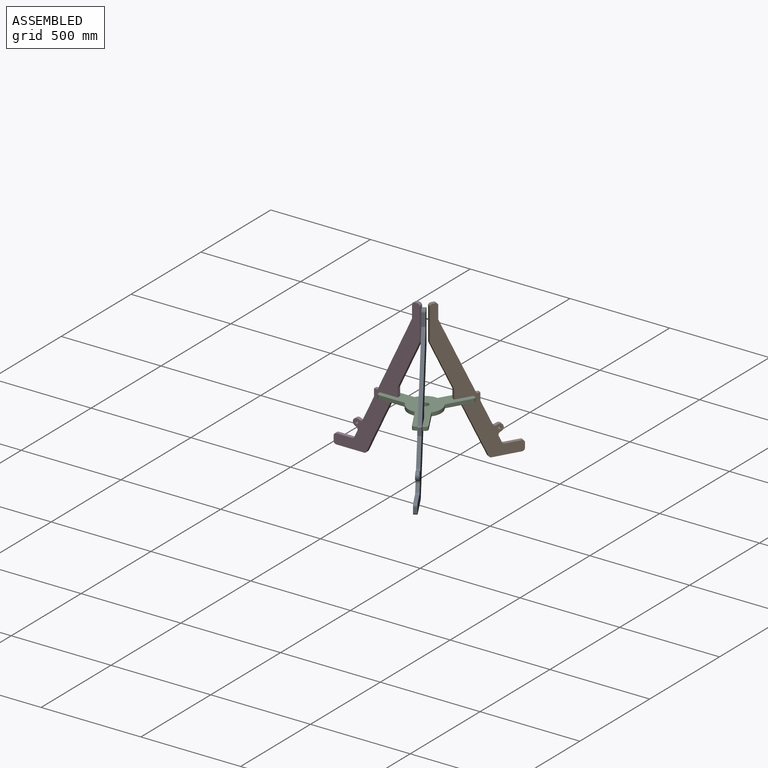
[diagram: assembled view]
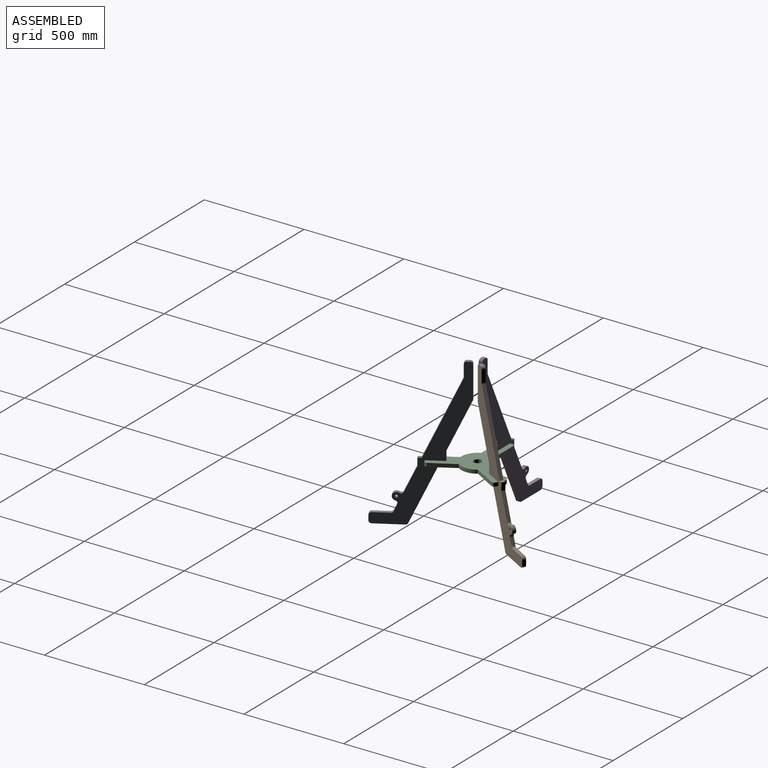
[diagram: assembled view, second angle]
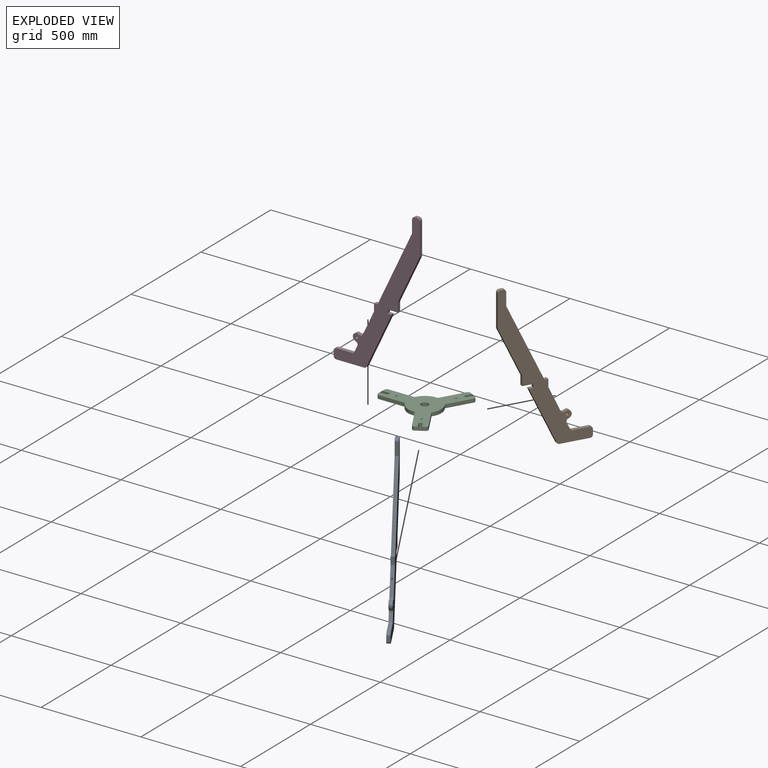
[diagram: exploded view]
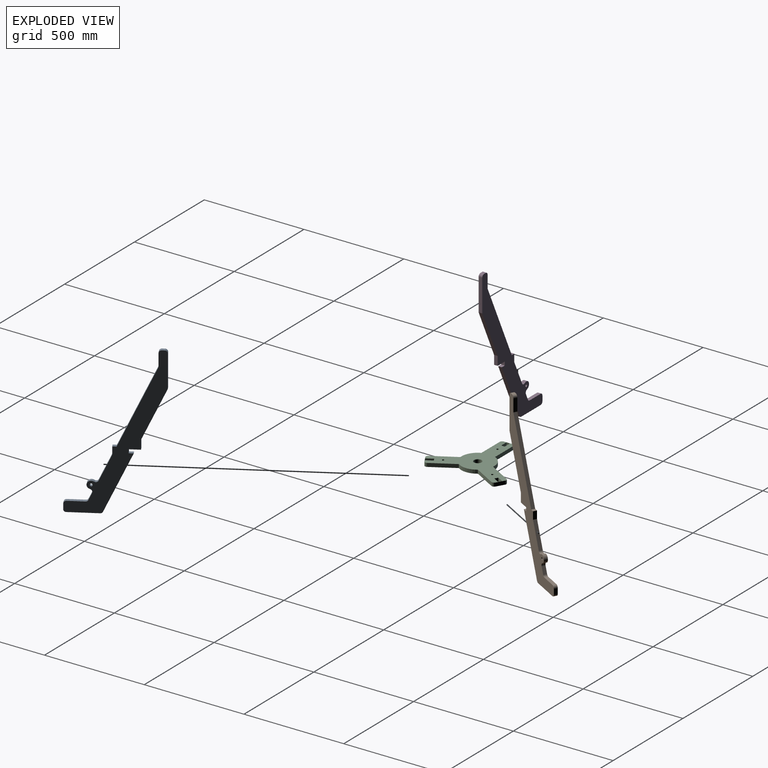
[diagram: exploded view, second angle]
ASSEMBLY  parts=4 mates=3
PART A: 31 faces, bbox 430.9x18x748.4 mm
  f0: plane 32.07x18.03mm, normal (-0.9,0,0.43), area 639.3mm2, adj f21,f22,f27,f28
  f1: plane 79.37x18.03mm, normal (0,0,1), area 1431.4mm2, adj f21,f22,f28,f29
  f2: plane 25.4x18.03mm, normal (-1,0,0), area 458.1mm2, adj f21,f22,f29,f30
  f3: plane 139.67x18.03mm, normal (0,0,-1), area 2518.9mm2, adj f21,f22,f23,f30
  f4: plane 269.44x126.91mm, normal (0.9,0,-0.43), area 5371.2mm2, adj f5,f21,f22,f23
  f5: plane 21.15x18.03mm, normal (0,0,1), area 381.5mm2, adj f4,f6,f21,f22
  f6: plane 18.03x18.03mm, normal (1,0,0), area 325.2mm2, adj f5,f7,f21,f22
  f7: plane 50.8x18.03mm, normal (0,0,-1), area 916.1mm2, adj f6,f8,f21,f22
  f8: plane 44.91x18.03mm, normal (1,0,0), area 809.9mm2, adj f7,f9,f21,f22
  f9: plane 234.6x110.49mm, normal (0.9,0,-0.43), area 4676.5mm2, adj f8,f10,f21,f22
  f10: plane 161.44x18.03mm, normal (1,0,0), area 2911.4mm2, adj f9,f21,f22,f24
  f11: plane 18.03x12.7mm, normal (0,0,1), area 229mm2, adj f21,f22,f24,f25
  f12: plane 63.5x18.03mm, normal (-1,0,0), area 1145.2mm2, adj f13,f21,f22,f25
  f13: plane 367.41x173.05mm, normal (-0.9,0,0.43), area 7324.1mm2, adj f12,f14,f21,f22
  f14: plane 18.03x17.95mm, normal (0,0,1), area 323.6mm2, adj f13,f15,f21,f22
  f15: plane 38.1x18.03mm, normal (-1,0,0), area 687.1mm2, adj f14,f16,f21,f22
  f16: plane 119.09x56.09mm, normal (-0.9,0,0.43), area 2374mm2, adj f15,f21,f22,f26
  f17: plane 18.03x5.74mm, normal (0.43,0,0.9), area 114.5mm2, adj f18,f21,f22,f26
  f18: cylinder r=19.05mm len=36.28mm, axis (0,1,0), area 1079.3mm2, adj f17,f19,f21,f22
  f19: plane 18.03x5.74mm, normal (-0.43,0,-0.9), area 114.5mm2, adj f18,f21,f22,f27
  f20: cylinder r=6.35mm len=18.03mm, axis (0,1,0), area 719.5mm2, adj f21,f22
  f21: plane 748.41x430.91mm, normal (0,-1,0), area 63201.6mm2, adj f0,f1,f2,f3,f4,f5,f6,f7
  f22: plane 748.41x430.91mm, normal (0,1,0), area 63201.6mm2, adj f0,f1,f2,f3,f4,f5,f6,f7
  f23: cylinder r=12.7mm len=18.03mm, axis (0,-1,0), area 258.9mm2, adj f3,f4,f21,f22
  f24: cylinder r=12.7mm len=18.03mm, axis (0,1,0), area 359.8mm2, adj f10,f11,f21,f22
  f25: cylinder r=12.7mm len=18.03mm, axis (0,1,0), area 359.8mm2, adj f11,f12,f21,f22
  f26: cylinder r=12.7mm len=18.03mm, axis (0,1,0), area 359.8mm2, adj f16,f17,f21,f22
  f27: cylinder r=12.7mm len=18.03mm, axis (0,-1,0), area 359.8mm2, adj f0,f19,f21,f22
  f28: cylinder r=12.7mm len=18.03mm, axis (0,-1,0), area 258.9mm2, adj f0,f1,f21,f22
  f29: cylinder r=12.7mm len=18.03mm, axis (0,1,0), area 359.8mm2, adj f1,f2,f21,f22
  f30: cylinder r=12.7mm len=18.03mm, axis (0,-1,0), area 359.8mm2, adj f2,f3,f21,f22
PART B: same geometry as A
PART C: 36 faces, bbox 352.5x18x403.2 mm
  f0: plane 37.62x21.72mm, normal (0.5,0,-0.87), area 783.3mm2, adj f28,f29,f30,f35
  f1: plane 113.04x65.26mm, normal (0.87,0,0.5), area 2353.9mm2, adj f2,f28,f29,f30
  f2: cylinder r=82.55mm len=95.54mm, axis (0,1,0), area 1837.5mm2, adj f1,f3,f28,f29
  f3: plane 113.04x65.26mm, normal (0.87,0,-0.5), area 2353.9mm2, adj f2,f28,f29,f31
  f4: plane 37.62x21.72mm, normal (0.5,0,0.87), area 783.3mm2, adj f28,f29,f31,f32
  f5: plane 113.04x65.26mm, normal (-0.87,0,0.5), area 2353.9mm2, adj f6,f28,f29,f32
  f6: cylinder r=82.55mm len=82.74mm, axis (0,1,0), area 1837.5mm2, adj f5,f7,f28,f29
  f7: plane 130.52x18.03mm, normal (0,0,1), area 2353.9mm2, adj f6,f28,f29,f33
  f8: plane 43.43x18.03mm, normal (-1,0,0), area 783.3mm2, adj f28,f29,f33,f34
  f9: plane 130.52x18.03mm, normal (0,0,-1), area 2353.9mm2, adj f10,f28,f29,f34
  f10: cylinder r=82.55mm len=82.74mm, axis (0,1,0), area 1837.5mm2, adj f9,f20,f28,f29
  f11: plane 32.67x18.86mm, normal (0.87,0,-0.5), area 680.4mm2, adj f12,f24,f28,f29
  f12: plane 18.03x15.62mm, normal (-0.5,0,-0.87), area 325.2mm2, adj f11,f13,f28,f29
  f13: plane 32.67x18.86mm, normal (-0.87,0,0.5), area 680.4mm2, adj f12,f24,f28,f29
  f14: plane 32.67x18.86mm, normal (-0.87,0,-0.5), area 680.4mm2, adj f15,f25,f28,f29
  f15: plane 18.03x15.62mm, normal (-0.5,0,0.87), area 325.2mm2, adj f14,f16,f28,f29
  f16: plane 32.67x18.86mm, normal (0.87,0,0.5), area 680.4mm2, adj f15,f25,f28,f29
  f17: plane 18.03x18.03mm, normal (1,0,0), area 325.2mm2, adj f18,f26,f28,f29
  f18: plane 37.73x18.03mm, normal (0,0,-1), area 680.4mm2, adj f17,f19,f28,f29
  f19: plane 18.03x18.03mm, normal (-1,0,0), area 325.2mm2, adj f18,f26,f28,f29
  f20: plane 113.04x65.26mm, normal (-0.87,0,-0.5), area 2353.9mm2, adj f10,f28,f29,f35
  f21: cylinder r=5.59mm len=18.03mm, axis (0,1,0), area 633.2mm2, adj f28,f29
  f22: cylinder r=5.59mm len=18.03mm, axis (0,1,0), area 633.2mm2, adj f28,f29
  f23: cylinder r=5.59mm len=18.03mm, axis (0,1,0), area 633.2mm2, adj f28,f29
  f24: plane 18.03x15.62mm, normal (0.5,0,0.87), area 325.2mm2, adj f11,f13,f28,f29
  f25: plane 18.03x15.62mm, normal (0.5,0,-0.87), area 325.2mm2, adj f14,f16,f28,f29
  f26: plane 37.73x18.03mm, normal (0,0,1), area 680.4mm2, adj f17,f19,f28,f29
  f27: cylinder r=19.05mm len=38.1mm, axis (0,1,0), area 2158.6mm2, adj f28,f29
  f28: plane 403.15x352.54mm, normal (0,-1,0), area 46256.7mm2, adj f0,f1,f2,f3,f4,f5,f6,f7
  f29: plane 403.15x352.54mm, normal (0,1,0), area 46256.7mm2, adj f0,f1,f2,f3,f4,f5,f6,f7
  f30: cylinder r=12.7mm len=18.03mm, axis (0,-1,0), area 359.8mm2, adj f0,f1,f28,f29
  f31: cylinder r=12.7mm len=18.03mm, axis (0,1,0), area 359.8mm2, adj f3,f4,f28,f29
  f32: cylinder r=12.7mm len=18.03mm, axis (0,-1,0), area 359.8mm2, adj f4,f5,f28,f29
  f33: cylinder r=12.7mm len=18.03mm, axis (0,1,0), area 359.8mm2, adj f7,f8,f28,f29
  f34: cylinder r=12.7mm len=18.03mm, axis (0,-1,0), area 359.8mm2, adj f8,f9,f28,f29
  f35: cylinder r=12.7mm len=18.03mm, axis (0,1,0), area 359.8mm2, adj f0,f20,f28,f29
PART D: same geometry as A
PLACE A rot(axis=(0,0,1),120deg) t=(-519.77,-741.17,-442.47)mm
PLACE B rot(axis=(0,0,-1),120deg) t=(-504.15,-741.17,-442.47)mm
PLACE C rot(axis=(-1,0,0),90deg) t=(-511.96,472.61,-816.21)mm fixed
PLACE D t=(-511.96,-727.65,-442.47)mm
MATE fastened C.f25 <-> A.f6  axis (0.5,-0.87,0) through (-421.78,-892.85,-807.19)mm
MATE fastened C.f24 <-> B.f6  axis (0.5,0.87,0) through (-421.78,-580.48,-807.19)mm
MATE fastened D.f6 <-> C.f19  axis (1,0,0) through (-692.3,-736.66,-807.19)mm
